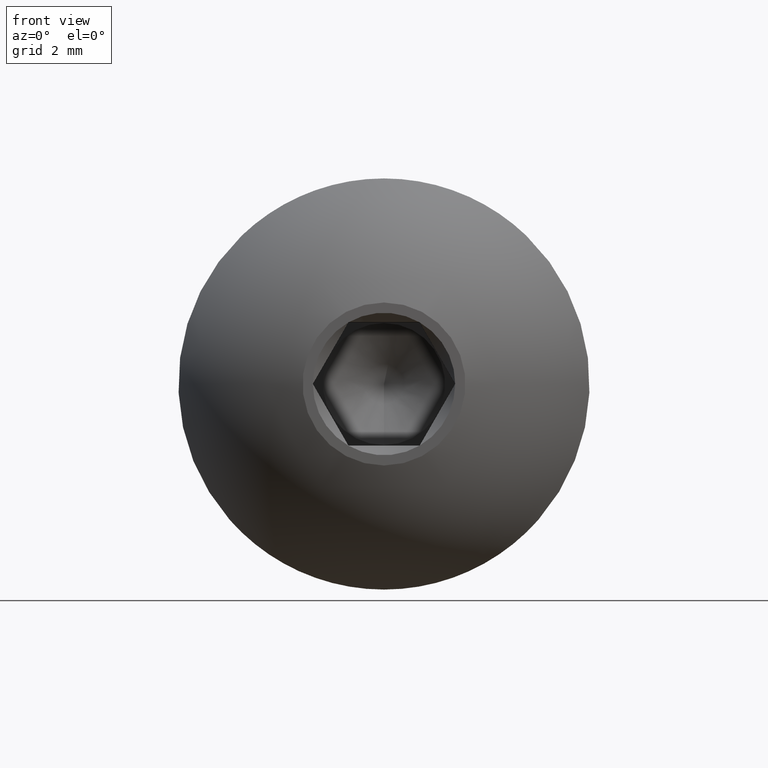
[diagram: clean part render]
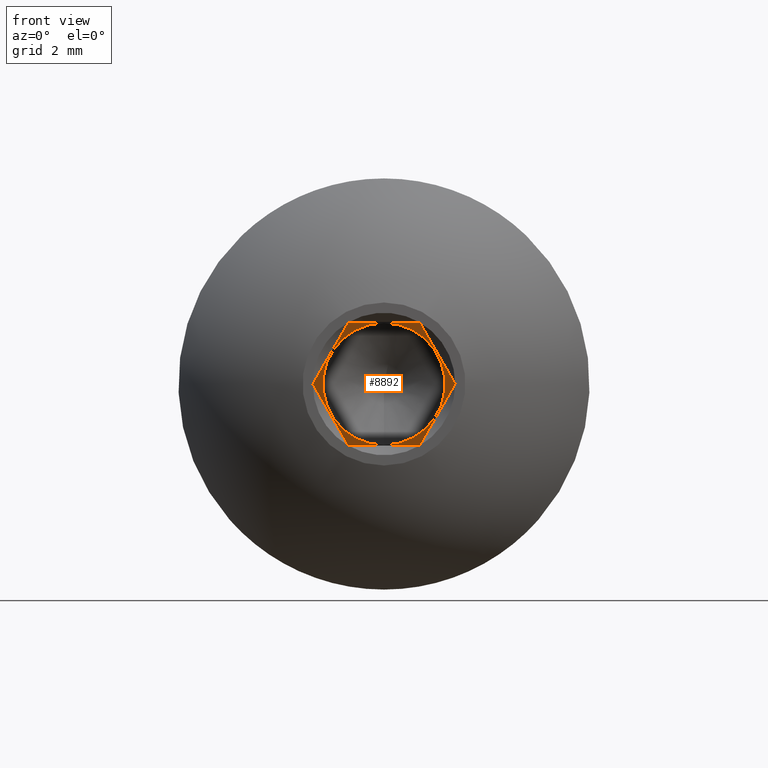
[diagram: same view with one face highlighted and labeled with its STEP entity id]
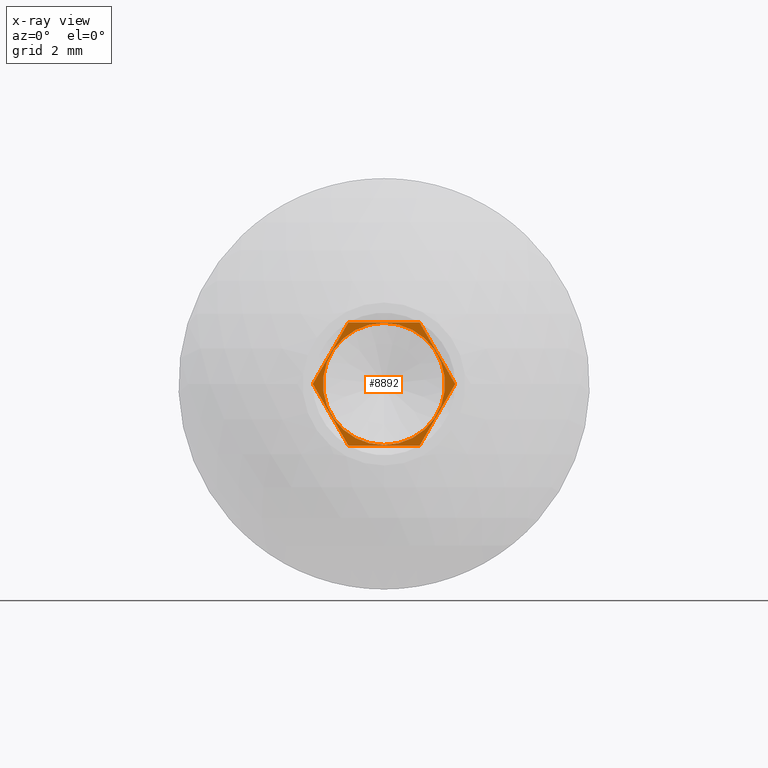
[diagram: x-ray of the same camera — body ghosted, the highlighted face saturated]
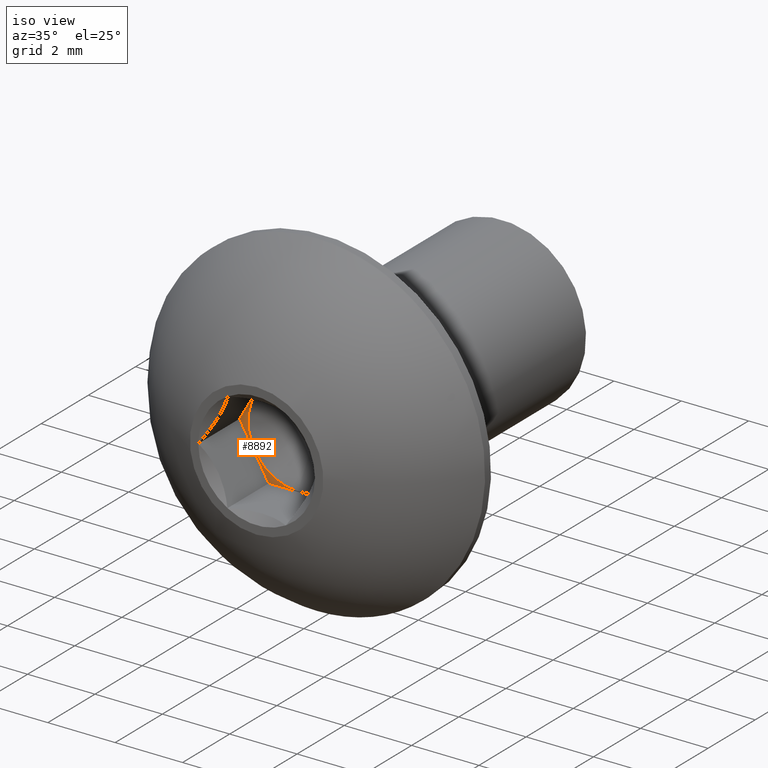
[diagram: same view with one face highlighted and labeled with its STEP entity id]
A machine part, front view. The second image highlights one B-rep face of the part: STEP entity #8892.
The next image is the same camera in x-ray: the body ghosted, the highlighted face saturated — about 0% of this face is hidden behind the body in this view.
A second angle (iso view) of the same face is appended — the face is thin or edge-on in the first view.
In plain terms, the highlighted planar face has unit normal (0, -1, 0).
Its self-contained STEP definition (entity closure, byte-faithful):
#49 = LINE ( 'NONE', #3614, #419 ) ;
#97 = EDGE_CURVE ( 'NONE', #10025, #2205, #12328, .T. ) ;
#419 = VECTOR ( 'NONE', #6419, 1000.000000000000000 ) ;
#991 = ORIENTED_EDGE ( 'NONE', *, *, #11824, .T. ) ;
#1073 = PLANE ( 'NONE',  #5883 ) ;
#1755 = VECTOR ( 'NONE', #12513, 1000.000000000000000 ) ;
#1859 = DIRECTION ( 'NONE',  ( -0.000000000000000000, 1.000000000000000000, -0.000000000000000000 ) ) ;
#2066 = CIRCLE ( 'NONE', #3796, 1.484999999999999654 ) ;
#2205 = VERTEX_POINT ( 'NONE', #12471 ) ;
#2635 = CARTESIAN_POINT ( 'NONE',  ( 0.8660254037844224984, 1.749999999999999778, -1.500000000000000444 ) ) ;
#2874 = LINE ( 'NONE', #2635, #12034 ) ;
#3007 = CARTESIAN_POINT ( 'NONE',  ( -0.8660254037844525854, 1.749999999999999778, -1.500000000000000444 ) ) ;
#3109 = ORIENTED_EDGE ( 'NONE', *, *, #4937, .T. ) ;
#3246 = FACE_BOUND ( 'NONE', #3511, .T. ) ;
#3354 = ORIENTED_EDGE ( 'NONE', *, *, #97, .F. ) ;
#3484 = ORIENTED_EDGE ( 'NONE', *, *, #8823, .T. ) ;
#3511 = EDGE_LOOP ( 'NONE', ( #991 ) ) ;
#3614 = CARTESIAN_POINT ( 'NONE',  ( -0.8660254037844525854, 1.749999999999999778, -1.500000000000000444 ) ) ;
#3787 = CARTESIAN_POINT ( 'NONE',  ( 0.8660254037844224984, 1.749999999999999778, -1.500000000000000444 ) ) ;
#3796 = AXIS2_PLACEMENT_3D ( 'NONE', #7867, #1859, #9013 ) ;
#4094 = VERTEX_POINT ( 'NONE', #3787 ) ;
#4363 = VECTOR ( 'NONE', #12015, 999.9999999999998863 ) ;
#4937 = EDGE_CURVE ( 'NONE', #12612, #4094, #5540, .T. ) ;
#5108 = LINE ( 'NONE', #10928, #4363 ) ;
#5131 = VERTEX_POINT ( 'NONE', #9799 ) ;
#5540 = LINE ( 'NONE', #3007, #1755 ) ;
#5698 = LINE ( 'NONE', #6274, #13919 ) ;
#5853 = DIRECTION ( 'NONE',  ( 0.4999999999999976685, 0.000000000000000000, 0.8660254037844399289 ) ) ;
#5883 = AXIS2_PLACEMENT_3D ( 'NONE', #8515, #9463, #10868 ) ;
#6274 = CARTESIAN_POINT ( 'NONE',  ( -0.8660254037844525854, 1.749999999999999778, 1.500000000000000000 ) ) ;
#6419 = DIRECTION ( 'NONE',  ( -0.4999999999999844569, 0.000000000000000000, 0.8660254037844475894 ) ) ;
#7867 = CARTESIAN_POINT ( 'NONE',  ( 0.000000000000000000, 1.749999999999999778, 0.000000000000000000 ) ) ;
#8091 = ORIENTED_EDGE ( 'NONE', *, *, #10470, .T. ) ;
#8359 = DIRECTION ( 'NONE',  ( 0.4999999999999977796, 0.000000000000000000, -0.8660254037844398178 ) ) ;
#8375 = EDGE_CURVE ( 'NONE', #12612, #5131, #49, .T. ) ;
#8515 = CARTESIAN_POINT ( 'NONE',  ( -0.8660254037844525854, 1.749999999999999778, -1.500000000000000444 ) ) ;
#8559 = EDGE_CURVE ( 'NONE', #10893, #10025, #5698, .T. ) ;
#8729 = DIRECTION ( 'NONE',  ( 1.000000000000000000, 0.000000000000000000, 0.000000000000000000 ) ) ;
#8823 = EDGE_CURVE ( 'NONE', #4094, #2205, #2874, .T. ) ;
#8892 = ADVANCED_FACE ( 'NONE', ( #12585, #3246 ), #1073, .T. ) ;
#9013 = DIRECTION ( 'NONE',  ( 0.000000000000000000, 0.000000000000000000, -1.000000000000000000 ) ) ;
#9463 = DIRECTION ( 'NONE',  ( 0.000000000000000000, -1.000000000000000000, 0.000000000000000000 ) ) ;
#9518 = CARTESIAN_POINT ( 'NONE',  ( 0.8660254037844224984, 1.749999999999999778, 1.500000000000000000 ) ) ;
#9522 = EDGE_LOOP ( 'NONE', ( #3109, #3484, #3354, #12935, #8091, #11608 ) ) ;
#9799 = CARTESIAN_POINT ( 'NONE',  ( -1.732050807568855655, 1.749999999999999778, 3.165181590144409173E-16 ) ) ;
#10025 = VERTEX_POINT ( 'NONE', #14345 ) ;
#10470 = EDGE_CURVE ( 'NONE', #10893, #5131, #5108, .T. ) ;
#10868 = DIRECTION ( 'NONE',  ( 0.000000000000000000, -0.000000000000000000, -1.000000000000000000 ) ) ;
#10893 = VERTEX_POINT ( 'NONE', #14311 ) ;
#10928 = CARTESIAN_POINT ( 'NONE',  ( -0.8660254037844525854, 1.749999999999999778, 1.500000000000000000 ) ) ;
#11608 = ORIENTED_EDGE ( 'NONE', *, *, #8375, .F. ) ;
#11824 = EDGE_CURVE ( 'NONE', #13234, #13234, #2066, .T. ) ;
#12015 = DIRECTION ( 'NONE',  ( -0.4999999999999847344, 0.000000000000000000, -0.8660254037844475894 ) ) ;
#12034 = VECTOR ( 'NONE', #5853, 1000.000000000000114 ) ;
#12328 = LINE ( 'NONE', #9518, #13461 ) ;
#12471 = CARTESIAN_POINT ( 'NONE',  ( 1.732050807568856099, 1.749999999999999778, -1.077119364755166471E-16 ) ) ;
#12513 = DIRECTION ( 'NONE',  ( 1.000000000000000000, 0.000000000000000000, 0.000000000000000000 ) ) ;
#12585 = FACE_OUTER_BOUND ( 'NONE', #9522, .T. ) ;
#12612 = VERTEX_POINT ( 'NONE', #14333 ) ;
#12935 = ORIENTED_EDGE ( 'NONE', *, *, #8559, .F. ) ;
#13234 = VERTEX_POINT ( 'NONE', #13373 ) ;
#13373 = CARTESIAN_POINT ( 'NONE',  ( 0.000000000000000000, 1.749999999999999778, -1.484999999999999654 ) ) ;
#13461 = VECTOR ( 'NONE', #8359, 1000.000000000000114 ) ;
#13919 = VECTOR ( 'NONE', #8729, 1000.000000000000000 ) ;
#14311 = CARTESIAN_POINT ( 'NONE',  ( -0.8660254037844525854, 1.749999999999999778, 1.500000000000000000 ) ) ;
#14333 = CARTESIAN_POINT ( 'NONE',  ( -0.8660254037844525854, 1.749999999999999778, -1.500000000000000444 ) ) ;
#14345 = CARTESIAN_POINT ( 'NONE',  ( 0.8660254037844224984, 1.749999999999999778, 1.500000000000000000 ) ) ;